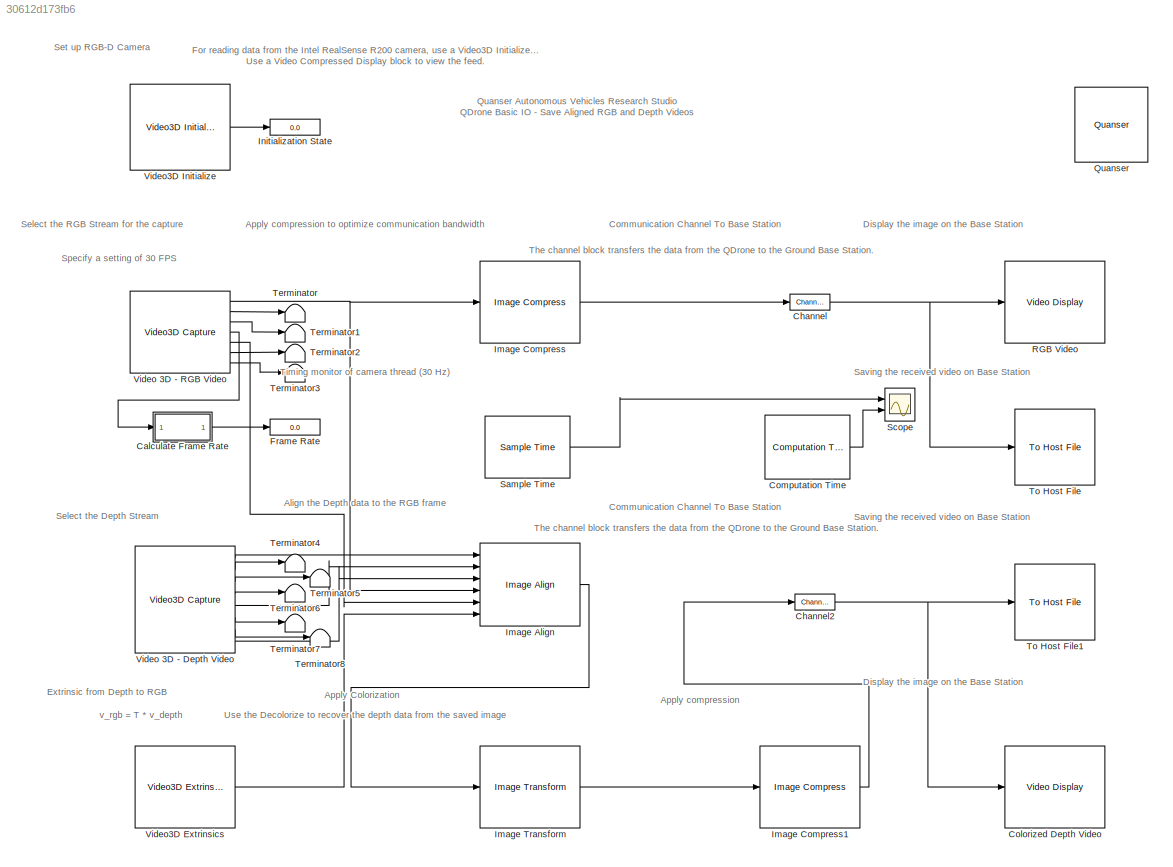
MODEL slx_30612d173fb6
KIND model
CONFIG AbsTol = auto
CONFIG EnableMultiTasking = on
CONFIG FixedStep = 0.001
CONFIG MaxStep = auto
CONFIG MinStep = auto
CONFIG RelTol = 1e-3
CONFIG SampleTimeConstraint = Unconstrained
CONFIG Solver = FixedStepDiscrete
CONFIG SolverName = FixedStepDiscrete
CONFIG StartTime = 0.0
CONFIG StopTime = inf
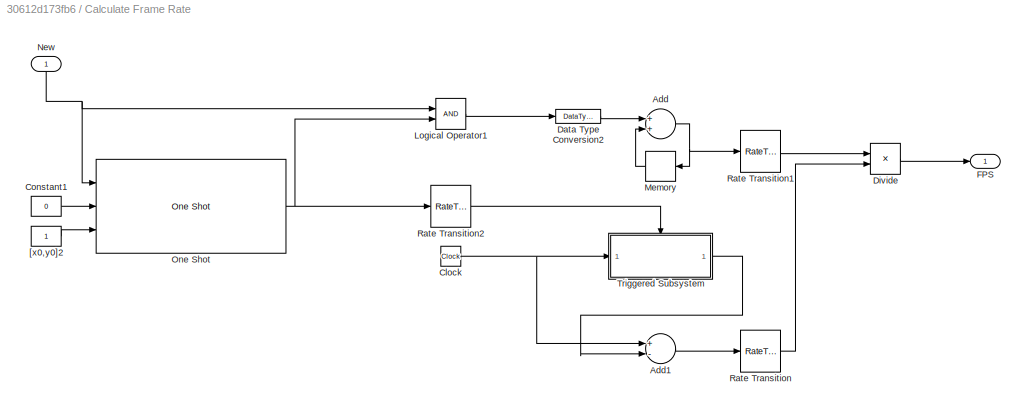
BLOCK [SubSystem] Calculate Frame Rate
  Ports = [1, 1]
  RequestExecContextInheritance = off
BLOCK [Sum] Calculate Frame Rate/Add
  InputSameDT = off
  OutDataTypeStr = Inherit: Inherit via internal rule
  Ports = [2, 1]
  SaturateOnIntegerOverflow = off
BLOCK [Sum] Calculate Frame Rate/Add1
  InputSameDT = off
  Inputs = +-
  OutDataTypeStr = Inherit: Inherit via internal rule
  Ports = [2, 1]
  SaturateOnIntegerOverflow = off
BLOCK [Clock] Calculate Frame Rate/Clock
  Decimation = 1
BLOCK [Constant] Calculate Frame Rate/Constant1
  Value = 0
BLOCK [DataTypeConversion] Calculate Frame Rate/Data Type Conversion2
  RndMeth = Floor
  SaturateOnIntegerOverflow = off
BLOCK [Product] Calculate Frame Rate/Divide
  InputSameDT = off
  Inputs = */
  OutDataTypeStr = Inherit: Inherit via internal rule
  Ports = [2, 1]
  RndMeth = Floor
  SaturateOnIntegerOverflow = off
BLOCK [Outport] Calculate Frame Rate/FPS
  IconDisplay = Port number
BLOCK [Logic] Calculate Frame Rate/Logical Operator1
  AllPortsSameDT = off
  OutDataTypeStr = boolean
  Ports = [2, 1]
BLOCK [Memory] Calculate Frame Rate/Memory
  InheritSampleTime = on
BLOCK [Inport] Calculate Frame Rate/New
  IconDisplay = Port number
BLOCK [Reference] Calculate Frame Rate/One Shot  REF=quarc_library/Discontinuities/One Shot
  Ports = [3, 1]
  SourceBlock = quarc_library/Discontinuities/One Shot
  SourceProductName = QUARC Targets
  SourceType = One Shot
BLOCK [RateTransition] Calculate Frame Rate/Rate Transition
BLOCK [RateTransition] Calculate Frame Rate/Rate Transition1
BLOCK [RateTransition] Calculate Frame Rate/Rate Transition2
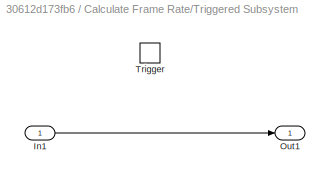
BLOCK [SubSystem] Calculate Frame Rate/Triggered Subsystem
  Ports = [1, 1, 0, 1]
  RequestExecContextInheritance = off
  TreatAsAtomicUnit = on
BLOCK [Inport] Calculate Frame Rate/Triggered Subsystem/In1
  IconDisplay = Port number
BLOCK [Outport] Calculate Frame Rate/Triggered Subsystem/Out1
  IconDisplay = Port number
BLOCK [TriggerPort] Calculate Frame Rate/Triggered Subsystem/Trigger
  Ports = []
  StatesWhenEnabling = held
  VariantControl = Variant
BLOCK [Constant] Calculate Frame Rate/[x0,y0]2
BLOCK [Reference] Channel  REF=quarc_library/Signal Routing/Channel
  Ports = [1, 1]
  SourceBlock = quarc_library/Signal Routing/Channel
  SourceProductName = QUARC Targets
  SourceType = Channel
BLOCK [Reference] Channel2  REF=quarc_library/Signal Routing/Channel
  Ports = [1, 1]
  SourceBlock = quarc_library/Signal Routing/Channel
  SourceProductName = QUARC Targets
  SourceType = Channel
BLOCK [Reference] Colorized Depth Video  REF=quarc_library/Multimedia/Video Display
  Ports = [1]
  SourceBlock = quarc_library/Multimedia/Video Display
  SourceProductName = QUARC Targets
  SourceType = Video Display
  Tag = Save_Aligned_RGB_Depth_Videos/Colorized Depth Video
  UserDataPersistent = on
BLOCK [Reference] Computation Time  REF=quarc_library/Sources/Time/Computation Time
  Ports = [0, 1]
  SourceBlock = quarc_library/Sources/Time/Computation Time
  SourceProductName = QUARC Targets
  SourceType = Computation Time
BLOCK [Display] Frame Rate
  Decimation = 100
  Ports = [1]
BLOCK [Reference] Image Align  REF=quarc_library/Image Processing/Generic/Image Align
  Ports = [6, 1]
  SourceBlock = quarc_library/Image Processing/Generic/Image Align
  SourceProductName = QUARC Targets
  SourceType = Image Align
BLOCK [Reference] Image Compress  REF=quarc_library/Image Processing/Generic/Image Compress
  AttributesFormatString = (%<algorithm>)
  Ports = [1, 1]
  SourceBlock = quarc_library/Image Processing/Generic/Image Compress
  SourceProductName = QUARC Targets
  SourceType = Image Compress
BLOCK [Reference] Image Compress1  REF=quarc_library/Image Processing/Generic/Image Compress
  AttributesFormatString = (%<algorithm>)
  Ports = [1, 1]
  SourceBlock = quarc_library/Image Processing/Generic/Image Compress
  SourceProductName = QUARC Targets
  SourceType = Image Compress
BLOCK [Reference] Image Transform  REF=quarc_library/Image Processing/Generic/Image Transform
  AttributesFormatString = (%<algorithm>)
  Ports = [1, 1]
  SourceBlock = quarc_library/Image Processing/Generic/Image Transform
  SourceProductName = QUARC Targets
  SourceType = Image Transform
BLOCK [Display] Initialization State
  Decimation = 100
  Ports = [1]
BLOCK [Reference] Quanser  REF=quarc_library/Logos/Quanser
  Ports = []
  SourceBlock = quarc_library/Logos/Quanser
  SourceProductName = QUARC Targets
  SourceType = Powered by Quanser
BLOCK [Reference] RGB Video  REF=quarc_library/Multimedia/Video Display
  Ports = [1]
  SourceBlock = quarc_library/Multimedia/Video Display
  SourceProductName = QUARC Targets
  SourceType = Video Display
  Tag = Save_Aligned_RGB_Depth_Videos/RGB Video
  UserDataPersistent = on
BLOCK [Reference] Sample Time  REF=quarc_library/Sources/Time/Sample Time
  Ports = [0, 1]
  Priority = -99
  SourceBlock = quarc_library/Sources/Time/Sample Time
  SourceProductName = QUARC Targets
  SourceType = Sample Time
BLOCK [Scope] Scope
  Floating = off
  NumInputPorts = 2
  Ports = [2]
  ScopeSpecificationString = Simulink.scopes.TimeScopeBlockCfg('CurrentConfiguration', extmgr.ConfigurationSet(extmgr.Configuration('Core','General UI',true),extmgr.Configuration('Core','Source UI',true),extmgr.Configuration('Sources','WiredSimulink',true),extmgr.Configuration('Visuals','Time Domain',true,'SerializedDisplays',{struct('MinYLimReal','0.03067','MaxYLimReal','0.05225','YLabelReal','','MinYLimMag','0.03067','MaxYL...<+1976ch>
BLOCK [Terminator] Terminator
BLOCK [Terminator] Terminator1
BLOCK [Terminator] Terminator2
BLOCK [Terminator] Terminator3
BLOCK [Terminator] Terminator4
BLOCK [Terminator] Terminator5
BLOCK [Terminator] Terminator6
BLOCK [Terminator] Terminator7
BLOCK [Terminator] Terminator8
BLOCK [Reference] To Host File  REF=quarc_library/Sinks/To Host/To Host File
  AttributesFormatString = %<final_file_name>
  Ports = [1]
  SourceBlock = quarc_library/Sinks/To Host/To Host File
  SourceProductName = QUARC Targets
  SourceType = To Host File
BLOCK [Reference] To Host File1  REF=quarc_library/Sinks/To Host/To Host File
  AttributesFormatString = %<final_file_name>
  Ports = [1]
  SourceBlock = quarc_library/Sinks/To Host/To Host File
  SourceProductName = QUARC Targets
  SourceType = To Host File
BLOCK [Reference] Video 3D - Depth Video  REF=quarc_library/Multimedia/Video3D Capture
  Ports = [0, 8]
  SourceBlock = quarc_library/Multimedia/Video3D Capture
  SourceProductName = QUARC Targets
  SourceType = Video3D Capture
  UserDataPersistent = on
BLOCK [Reference] Video 3D - RGB Video  REF=quarc_library/Multimedia/Video3D Capture
  Ports = [0, 7]
  SourceBlock = quarc_library/Multimedia/Video3D Capture
  SourceProductName = QUARC Targets
  SourceType = Video3D Capture
  UserDataPersistent = on
BLOCK [Reference] Video3D Extrinsics  REF=quarc_library/Multimedia/Video3D Extrinsics
  Ports = [0, 1]
  SourceBlock = quarc_library/Multimedia/Video3D Extrinsics
  SourceProductName = QUARC Targets
  SourceType = Video3D Extrinsics
  UserDataPersistent = on
BLOCK [Reference] Video3D Initialize  REF=quarc_library/Multimedia/Video3D Initialize
  Ports = [0, 1]
  SourceBlock = quarc_library/Multimedia/Video3D Initialize
  SourceProductName = QUARC Targets
  SourceType = Video3D Initialize
ANNOTATION (root): Quanser Autonomous Vehicles Research Studio QDrone Basic IO - Save Aligned RGB and Depth Videos
ANNOTATION (root): For reading data from the Intel RealSense R200 camera, use a Video3D Initialize block with the Device Identifier set to 0. Add Video3D Capture blocks as required and select the corresponding channel you want to view (RGB, Depth, Infrared, etc). Use a Video Compressed Display block to view the feed.
ANNOTATION (root): Align the Depth data to the RGB frame
ANNOTATION (root): Apply Colorization
ANNOTATION (root): Apply compression
ANNOTATION (root): Apply compression to optimize communication bandwidth
ANNOTATION (root): Communication Channel To Base Station
ANNOTATION (root): Display the image on the Base Station
ANNOTATION (root): Extrinsic from Depth to RGB
ANNOTATION (root): Saving the received video on Base Station
ANNOTATION (root): Select the Depth Stream
ANNOTATION (root): Select the RGB Stream for the capture
ANNOTATION (root): Set up RGB-D Camera
ANNOTATION (root): Specify a setting of 30 FPS
ANNOTATION (root): The channel block transfers the data from the QDrone to the Ground Base Station.
ANNOTATION (root): Timing monitor of camera thread (30 Hz)
ANNOTATION (root): Use the Decolorize to recover the depth data from the saved image
ANNOTATION (root): v_rgb = T * v_depth
LINE Calculate Frame Rate/Add1:1 -> Calculate Frame Rate/Rate Transition:1
NET Calculate Frame Rate/Add:1 -> Calculate Frame Rate/Memory:1, Calculate Frame Rate/Rate Transition1:1
NET Calculate Frame Rate/Clock:1 -> Calculate Frame Rate/Add1:1, Calculate Frame Rate/Triggered Subsystem:1
LINE Calculate Frame Rate/Constant1:1 -> Calculate Frame Rate/One Shot:2
LINE Calculate Frame Rate/Data Type Conversion2:1 -> Calculate Frame Rate/Add:1
LINE Calculate Frame Rate/Divide:1 -> Calculate Frame Rate/FPS:1
LINE Calculate Frame Rate/Logical Operator1:1 -> Calculate Frame Rate/Data Type Conversion2:1
LINE Calculate Frame Rate/Memory:1 -> Calculate Frame Rate/Add:2
NET Calculate Frame Rate/New:1 -> Calculate Frame Rate/Logical Operator1:1, Calculate Frame Rate/One Shot:1
NET Calculate Frame Rate/One Shot:1 -> Calculate Frame Rate/Logical Operator1:2, Calculate Frame Rate/Rate Transition2:1
LINE Calculate Frame Rate/Rate Transition1:1 -> Calculate Frame Rate/Divide:1
LINE Calculate Frame Rate/Rate Transition2:1 -> Calculate Frame Rate/Triggered Subsystem:trigger
LINE Calculate Frame Rate/Rate Transition:1 -> Calculate Frame Rate/Divide:2
LINE Calculate Frame Rate/Triggered Subsystem/In1:1 -> Calculate Frame Rate/Triggered Subsystem/Out1:1
LINE Calculate Frame Rate/Triggered Subsystem:1 -> Calculate Frame Rate/Add1:2
LINE Calculate Frame Rate/[x0,y0]2:1 -> Calculate Frame Rate/One Shot:3
LINE Calculate Frame Rate:1 -> Frame Rate:1
NET Channel2:1 -> Colorized Depth Video:1, To Host File1:1
NET Channel:1 -> RGB Video:1, To Host File:1
LINE Computation Time:1 -> Scope:2
LINE Image Align:1 -> Image Transform:1
LINE Image Compress1:1 -> Channel2:1
LINE Image Compress:1 -> Channel:1
LINE Image Transform:1 -> Image Compress1:1
LINE Sample Time:1 -> Scope:1
LINE Video 3D - Depth Video:1 -> Image Align:1
LINE Video 3D - Depth Video:2 -> Terminator4:1
LINE Video 3D - Depth Video:3 -> Terminator5:1
LINE Video 3D - Depth Video:4 -> Terminator6:1
LINE Video 3D - Depth Video:5 -> Image Align:2
LINE Video 3D - Depth Video:6 -> Terminator7:1
LINE Video 3D - Depth Video:7 -> Terminator8:1
LINE Video 3D - Depth Video:8 -> Image Align:3
NET Video 3D - RGB Video:1 -> Image Align:4, Image Compress:1
LINE Video 3D - RGB Video:2 -> Terminator:1
LINE Video 3D - RGB Video:3 -> Terminator1:1
LINE Video 3D - RGB Video:4 -> Calculate Frame Rate:1
LINE Video 3D - RGB Video:5 -> Image Align:5
LINE Video 3D - RGB Video:6 -> Terminator2:1
LINE Video 3D - RGB Video:7 -> Terminator3:1
LINE Video3D Extrinsics:1 -> Image Align:6
LINE Video3D Initialize:1 -> Initialization State:1
note: NET lines group one-source signal fan-out (src -> all destinations, sorted); 1:1 wires keep LINE
